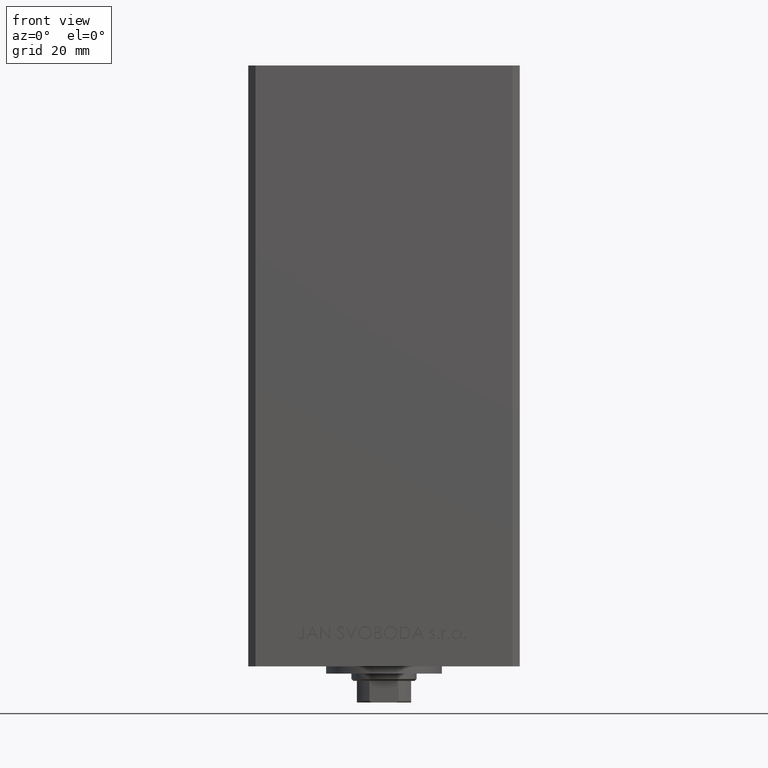
[diagram: clean part render]
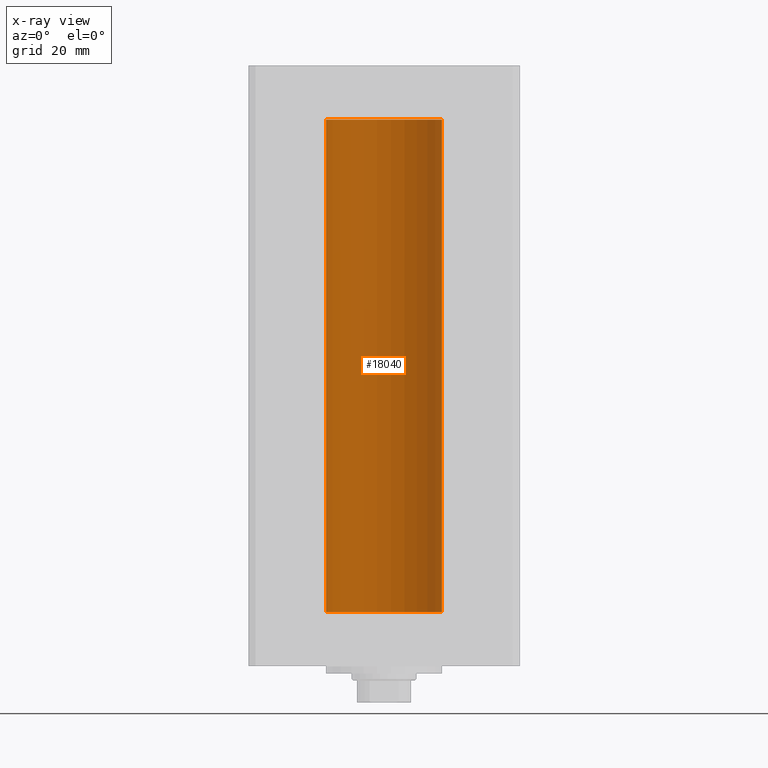
[diagram: x-ray — body ghosted, one internal face saturated and labeled with its STEP entity id]
A machine part, front view, then the same camera in x-ray: the body is ghosted and one INTERNAL B-rep face — a face not visible from any outside direction — is saturated and labeled: STEP entity #18040.
In plain terms, the highlighted cylindrical surface (partial cylindrical patch) has radius 16 mm, axis along (-0, -0, -1).
Its self-contained STEP definition (entity closure, byte-faithful):
#305 = DIRECTION ( 'NONE',  ( 1.000000000000000000, 0.000000000000000000, 0.000000000000000000 ) ) ;
#808 = CARTESIAN_POINT ( 'NONE',  ( 16.00000000000000000, 1.959434878635765131E-15, 0.000000000000000000 ) ) ;
#983 = VERTEX_POINT ( 'NONE', #808 ) ;
#1052 = CIRCLE ( 'NONE', #46092, 16.00000000000000000 ) ;
#1130 = VERTEX_POINT ( 'NONE', #40095 ) ;
#3880 = ORIENTED_EDGE ( 'NONE', *, *, #37967, .F. ) ;
#6020 = CARTESIAN_POINT ( 'NONE',  ( -16.00000000000000000, 0.000000000000000000, 136.0000000000000000 ) ) ;
#7395 = VERTEX_POINT ( 'NONE', #6020 ) ;
#7969 = DIRECTION ( 'NONE',  ( -0.000000000000000000, 0.000000000000000000, 1.000000000000000000 ) ) ;
#9530 = CARTESIAN_POINT ( 'NONE',  ( -16.00000000000000000, 0.000000000000000000, 136.0000000000000000 ) ) ;
#10373 = DIRECTION ( 'NONE',  ( -1.000000000000000000, 0.000000000000000000, 0.000000000000000000 ) ) ;
#10606 = DIRECTION ( 'NONE',  ( -0.000000000000000000, -0.000000000000000000, -1.000000000000000000 ) ) ;
#12768 = CARTESIAN_POINT ( 'NONE',  ( -16.00000000000000000, 0.000000000000000000, 0.000000000000000000 ) ) ;
#15163 = AXIS2_PLACEMENT_3D ( 'NONE', #37790, #10606, #10373 ) ;
#15399 = DIRECTION ( 'NONE',  ( -0.000000000000000000, 0.000000000000000000, 1.000000000000000000 ) ) ;
#15546 = VECTOR ( 'NONE', #31844, 1000.000000000000000 ) ;
#16771 = LINE ( 'NONE', #39755, #15546 ) ;
#18040 = ADVANCED_FACE ( 'NONE', ( #33589 ), #44496, .F. ) ;
#18528 = EDGE_CURVE ( 'NONE', #7395, #29068, #39195, .T. ) ;
#19296 = EDGE_CURVE ( 'NONE', #1130, #983, #16771, .T. ) ;
#19566 = CARTESIAN_POINT ( 'NONE',  ( 0.000000000000000000, 0.000000000000000000, 136.0000000000000000 ) ) ;
#21450 = EDGE_LOOP ( 'NONE', ( #41200, #33086, #35759, #3880 ) ) ;
#23066 = CARTESIAN_POINT ( 'NONE',  ( 0.000000000000000000, 0.000000000000000000, 0.000000000000000000 ) ) ;
#25223 = AXIS2_PLACEMENT_3D ( 'NONE', #19566, #7969, #305 ) ;
#25530 = EDGE_CURVE ( 'NONE', #1130, #7395, #46571, .T. ) ;
#29068 = VERTEX_POINT ( 'NONE', #12768 ) ;
#31844 = DIRECTION ( 'NONE',  ( -0.000000000000000000, -0.000000000000000000, -1.000000000000000000 ) ) ;
#33086 = ORIENTED_EDGE ( 'NONE', *, *, #25530, .T. ) ;
#33589 = FACE_OUTER_BOUND ( 'NONE', #21450, .T. ) ;
#35759 = ORIENTED_EDGE ( 'NONE', *, *, #18528, .T. ) ;
#37790 = CARTESIAN_POINT ( 'NONE',  ( 0.000000000000000000, 0.000000000000000000, 136.0000000000000000 ) ) ;
#37967 = EDGE_CURVE ( 'NONE', #983, #29068, #1052, .T. ) ;
#39195 = LINE ( 'NONE', #9530, #48346 ) ;
#39755 = CARTESIAN_POINT ( 'NONE',  ( 16.00000000000000000, 1.959434878635765131E-15, 136.0000000000000000 ) ) ;
#39933 = DIRECTION ( 'NONE',  ( -0.000000000000000000, -0.000000000000000000, -1.000000000000000000 ) ) ;
#40095 = CARTESIAN_POINT ( 'NONE',  ( 16.00000000000000000, 1.959434878635765131E-15, 136.0000000000000000 ) ) ;
#41200 = ORIENTED_EDGE ( 'NONE', *, *, #19296, .F. ) ;
#42607 = DIRECTION ( 'NONE',  ( 1.000000000000000000, 0.000000000000000000, 0.000000000000000000 ) ) ;
#44496 = CYLINDRICAL_SURFACE ( 'NONE', #15163, 16.00000000000000000 ) ;
#46092 = AXIS2_PLACEMENT_3D ( 'NONE', #23066, #15399, #42607 ) ;
#46571 = CIRCLE ( 'NONE', #25223, 16.00000000000000000 ) ;
#48346 = VECTOR ( 'NONE', #39933, 1000.000000000000000 ) ;